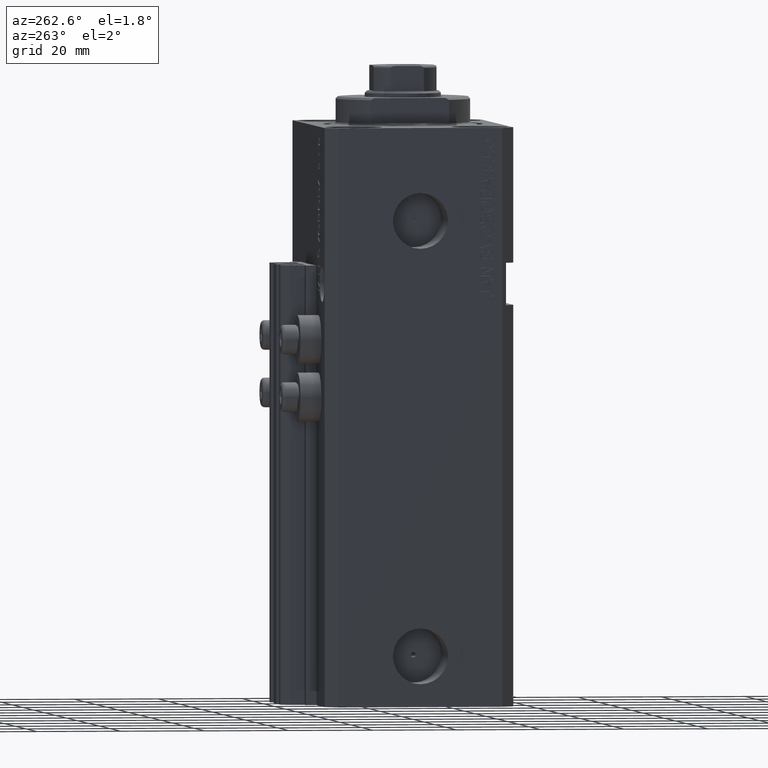
[diagram: clean part render]
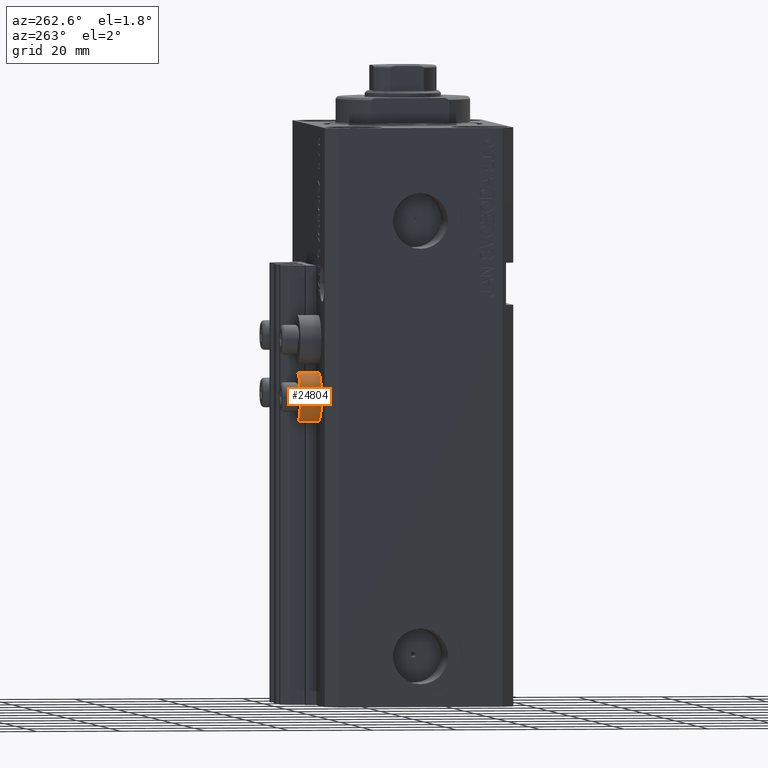
[diagram: same view with one face highlighted and labeled with its STEP entity id]
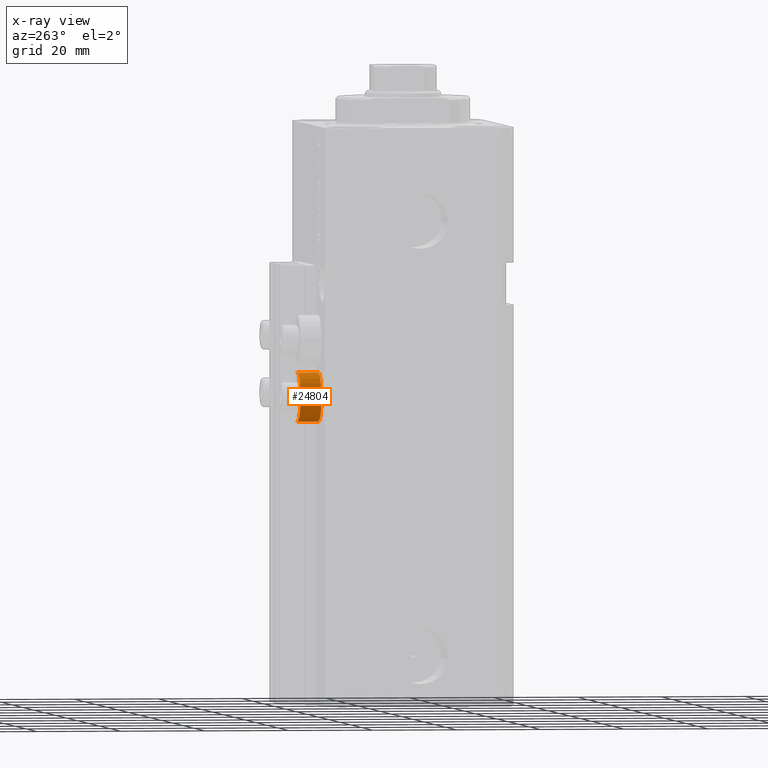
[diagram: x-ray of the same camera — body ghosted, the highlighted face saturated]
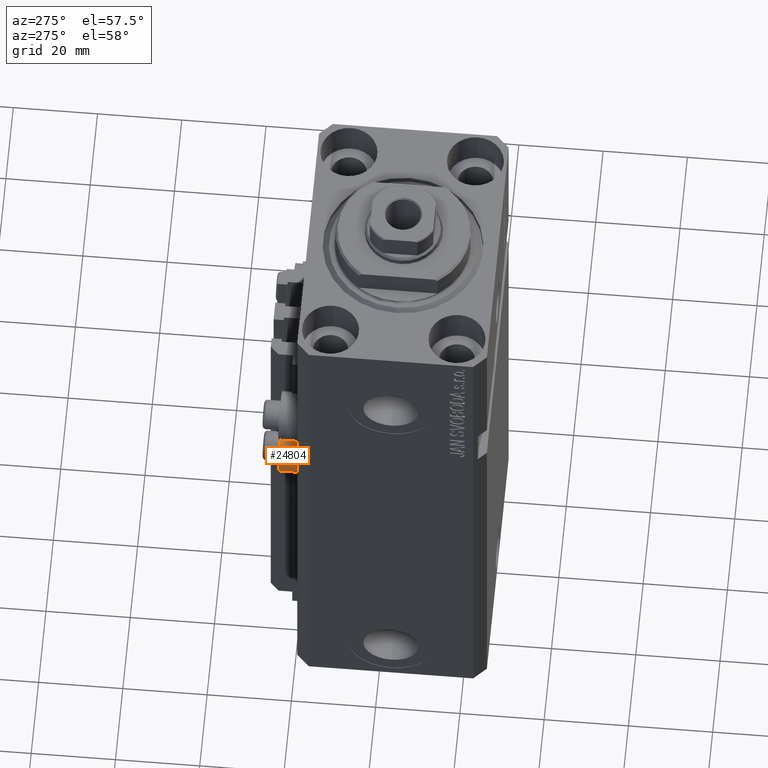
[diagram: same view with one face highlighted and labeled with its STEP entity id]
A machine part, auxiliary view. The second image highlights one B-rep face of the part: STEP entity #24804.
The next image is the same camera in x-ray: the body ghosted, the highlighted face saturated — about 0% of this face is hidden behind the body in this view.
A second angle (auxiliary view) of the same face is appended — the face is thin or edge-on in the first view.
In plain terms, the highlighted cylindrical surface (edge-blend (fillet) strip) has radius 5.8 mm, axis along (0, 1, 0).
Its self-contained STEP definition (entity closure, byte-faithful):
#1506 = CARTESIAN_POINT ( 'NONE',  ( -18.00000000000000355, 27.49999999996051514, -58.20000000000000284 ) ) ;
#2818 = CARTESIAN_POINT ( 'NONE',  ( -18.00000000000000355, 27.49999999996051514, -64.00000000000000000 ) ) ;
#5741 = VERTEX_POINT ( 'NONE', #21388 ) ;
#6019 = CARTESIAN_POINT ( 'NONE',  ( -18.00000000000000355, 27.49999999996051514, -58.20000000000000284 ) ) ;
#7668 = DIRECTION ( 'NONE',  ( 0.000000000000000000, 0.000000000000000000, -1.000000000000000000 ) ) ;
#8337 = CIRCLE ( 'NONE', #13659, 5.799999999999999822 ) ;
#9078 = CIRCLE ( 'NONE', #32705, 5.799999999999999822 ) ;
#9155 = DIRECTION ( 'NONE',  ( 0.000000000000000000, 1.000000000000000000, 0.000000000000000000 ) ) ;
#11043 = DIRECTION ( 'NONE',  ( 0.000000000000000000, 0.000000000000000000, -1.000000000000000000 ) ) ;
#11688 = CARTESIAN_POINT ( 'NONE',  ( -18.00000000000000355, 22.49999999999951328, -69.79999999999999716 ) ) ;
#13576 = DIRECTION ( 'NONE',  ( 0.000000000000000000, 0.000000000000000000, -1.000000000000000000 ) ) ;
#13659 = AXIS2_PLACEMENT_3D ( 'NONE', #2818, #20743, #13576 ) ;
#15353 = CARTESIAN_POINT ( 'NONE',  ( -18.00000000000000355, 27.49999999996051514, -64.00000000000000000 ) ) ;
#15429 = VERTEX_POINT ( 'NONE', #11688 ) ;
#15600 = EDGE_CURVE ( 'NONE', #31348, #37325, #8337, .T. ) ;
#17554 = CARTESIAN_POINT ( 'NONE',  ( -18.00000000000000355, 27.49999999996051514, -69.79999999999999716 ) ) ;
#19551 = DIRECTION ( 'NONE',  ( 0.000000000000000000, 1.000000000000000000, 0.000000000000000000 ) ) ;
#19854 = AXIS2_PLACEMENT_3D ( 'NONE', #15353, #28950, #11043 ) ;
#20619 = EDGE_LOOP ( 'NONE', ( #29974, #38725, #38447, #37040 ) ) ;
#20743 = DIRECTION ( 'NONE',  ( -0.000000000000000000, -1.000000000000000000, -0.000000000000000000 ) ) ;
#21388 = CARTESIAN_POINT ( 'NONE',  ( -18.00000000000000355, 22.49999999999951328, -58.20000000000000284 ) ) ;
#21937 = EDGE_CURVE ( 'NONE', #5741, #15429, #9078, .T. ) ;
#24804 = ADVANCED_FACE ( 'NONE', ( #40151 ), #33246, .T. ) ;
#25814 = DIRECTION ( 'NONE',  ( -0.000000000000000000, -1.000000000000000000, -0.000000000000000000 ) ) ;
#26706 = LINE ( 'NONE', #41243, #33044 ) ;
#27296 = LINE ( 'NONE', #6019, #36755 ) ;
#28950 = DIRECTION ( 'NONE',  ( 0.000000000000000000, 1.000000000000000000, 0.000000000000000000 ) ) ;
#29974 = ORIENTED_EDGE ( 'NONE', *, *, #21937, .F. ) ;
#31348 = VERTEX_POINT ( 'NONE', #1506 ) ;
#32553 = EDGE_CURVE ( 'NONE', #5741, #31348, #27296, .T. ) ;
#32705 = AXIS2_PLACEMENT_3D ( 'NONE', #33218, #25814, #7668 ) ;
#33044 = VECTOR ( 'NONE', #19551, 1000.000000000000000 ) ;
#33218 = CARTESIAN_POINT ( 'NONE',  ( -18.00000000000000355, 22.49999999999951328, -64.00000000000000000 ) ) ;
#33246 = CYLINDRICAL_SURFACE ( 'NONE', #19854, 5.799999999999999822 ) ;
#35110 = EDGE_CURVE ( 'NONE', #15429, #37325, #26706, .T. ) ;
#36755 = VECTOR ( 'NONE', #9155, 1000.000000000000000 ) ;
#37040 = ORIENTED_EDGE ( 'NONE', *, *, #35110, .F. ) ;
#37325 = VERTEX_POINT ( 'NONE', #17554 ) ;
#38447 = ORIENTED_EDGE ( 'NONE', *, *, #15600, .T. ) ;
#38725 = ORIENTED_EDGE ( 'NONE', *, *, #32553, .T. ) ;
#40151 = FACE_OUTER_BOUND ( 'NONE', #20619, .T. ) ;
#41243 = CARTESIAN_POINT ( 'NONE',  ( -18.00000000000000355, 27.49999999996051514, -69.79999999999999716 ) ) ;